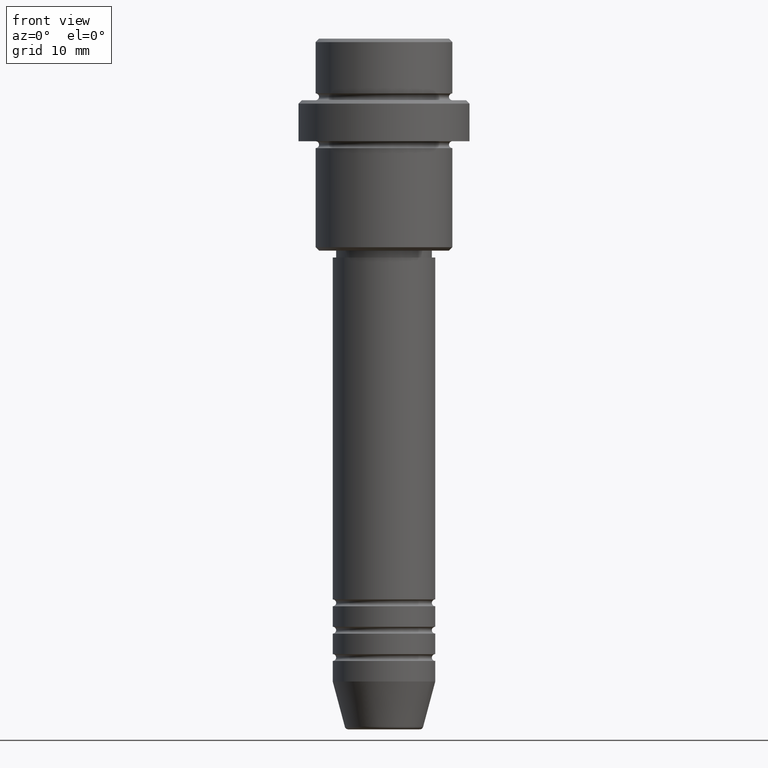
[diagram: clean part render]
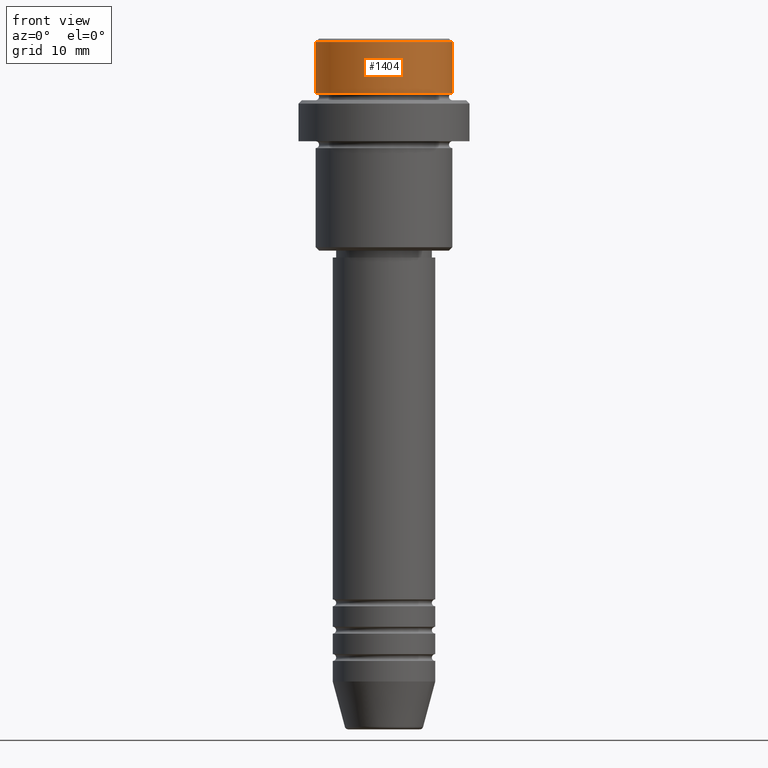
[diagram: same view with one face highlighted and labeled with its STEP entity id]
A machine part, front view. The second image highlights one B-rep face of the part: STEP entity #1404.
In plain terms, the highlighted cylindrical surface (partial cylindrical patch) has radius 10 mm, axis along (-0, -0, 1).
Its self-contained STEP definition (entity closure, byte-faithful):
#4 = CARTESIAN_POINT ( 'NONE',  ( 9.999999999999998224, 0.000000000000000000, 0.000000000000000000 ) ) ;
#34 = VERTEX_POINT ( 'NONE', #1279 ) ;
#62 = LINE ( 'NONE', #307, #328 ) ;
#66 = CARTESIAN_POINT ( 'NONE',  ( 9.999999999999998224, 0.000000000000000000, -0.4999999999999970024 ) ) ;
#89 = VERTEX_POINT ( 'NONE', #244 ) ;
#120 = FACE_OUTER_BOUND ( 'NONE', #1031, .T. ) ;
#227 = LINE ( 'NONE', #4, #760 ) ;
#231 = VERTEX_POINT ( 'NONE', #66 ) ;
#244 = CARTESIAN_POINT ( 'NONE',  ( -9.999999999999998224, 1.224646799147353059E-15, -7.999999999999998224 ) ) ;
#267 = ORIENTED_EDGE ( 'NONE', *, *, #1190, .T. ) ;
#307 = CARTESIAN_POINT ( 'NONE',  ( -9.999999999999998224, 1.224646799147353059E-15, 0.000000000000000000 ) ) ;
#328 = VECTOR ( 'NONE', #746, 1000.000000000000000 ) ;
#336 = CYLINDRICAL_SURFACE ( 'NONE', #953, 9.999999999999998224 ) ;
#348 = DIRECTION ( 'NONE',  ( 1.000000000000000000, 0.000000000000000000, 0.000000000000000000 ) ) ;
#380 = ORIENTED_EDGE ( 'NONE', *, *, #561, .T. ) ;
#464 = AXIS2_PLACEMENT_3D ( 'NONE', #1033, #1253, #1144 ) ;
#485 = CARTESIAN_POINT ( 'NONE',  ( -9.999999999999998224, 1.224646799147353059E-15, -0.4999999999999970024 ) ) ;
#538 = CARTESIAN_POINT ( 'NONE',  ( 0.000000000000000000, 0.000000000000000000, 0.000000000000000000 ) ) ;
#549 = AXIS2_PLACEMENT_3D ( 'NONE', #897, #1232, #348 ) ;
#561 = EDGE_CURVE ( 'NONE', #89, #34, #1177, .T. ) ;
#638 = EDGE_CURVE ( 'NONE', #34, #231, #227, .T. ) ;
#669 = VERTEX_POINT ( 'NONE', #485 ) ;
#675 = CIRCLE ( 'NONE', #464, 9.999999999999998224 ) ;
#677 = ORIENTED_EDGE ( 'NONE', *, *, #638, .T. ) ;
#737 = ORIENTED_EDGE ( 'NONE', *, *, #1282, .F. ) ;
#746 = DIRECTION ( 'NONE',  ( -0.000000000000000000, -0.000000000000000000, 1.000000000000000000 ) ) ;
#760 = VECTOR ( 'NONE', #871, 1000.000000000000000 ) ;
#871 = DIRECTION ( 'NONE',  ( -0.000000000000000000, -0.000000000000000000, 1.000000000000000000 ) ) ;
#883 = DIRECTION ( 'NONE',  ( 1.000000000000000000, 0.000000000000000000, 0.000000000000000000 ) ) ;
#897 = CARTESIAN_POINT ( 'NONE',  ( 0.000000000000000000, 0.000000000000000000, -7.999999999999998224 ) ) ;
#953 = AXIS2_PLACEMENT_3D ( 'NONE', #538, #997, #883 ) ;
#997 = DIRECTION ( 'NONE',  ( -0.000000000000000000, -0.000000000000000000, 1.000000000000000000 ) ) ;
#1031 = EDGE_LOOP ( 'NONE', ( #737, #380, #677, #267 ) ) ;
#1033 = CARTESIAN_POINT ( 'NONE',  ( 0.000000000000000000, 0.000000000000000000, -0.4999999999999970024 ) ) ;
#1144 = DIRECTION ( 'NONE',  ( 1.000000000000000000, 0.000000000000000000, 0.000000000000000000 ) ) ;
#1177 = CIRCLE ( 'NONE', #549, 9.999999999999998224 ) ;
#1190 = EDGE_CURVE ( 'NONE', #231, #669, #675, .T. ) ;
#1232 = DIRECTION ( 'NONE',  ( -0.000000000000000000, -0.000000000000000000, 1.000000000000000000 ) ) ;
#1253 = DIRECTION ( 'NONE',  ( 0.000000000000000000, 0.000000000000000000, -1.000000000000000000 ) ) ;
#1279 = CARTESIAN_POINT ( 'NONE',  ( 9.999999999999998224, 0.000000000000000000, -7.999999999999998224 ) ) ;
#1282 = EDGE_CURVE ( 'NONE', #89, #669, #62, .T. ) ;
#1404 = ADVANCED_FACE ( 'NONE', ( #120 ), #336, .T. ) ;